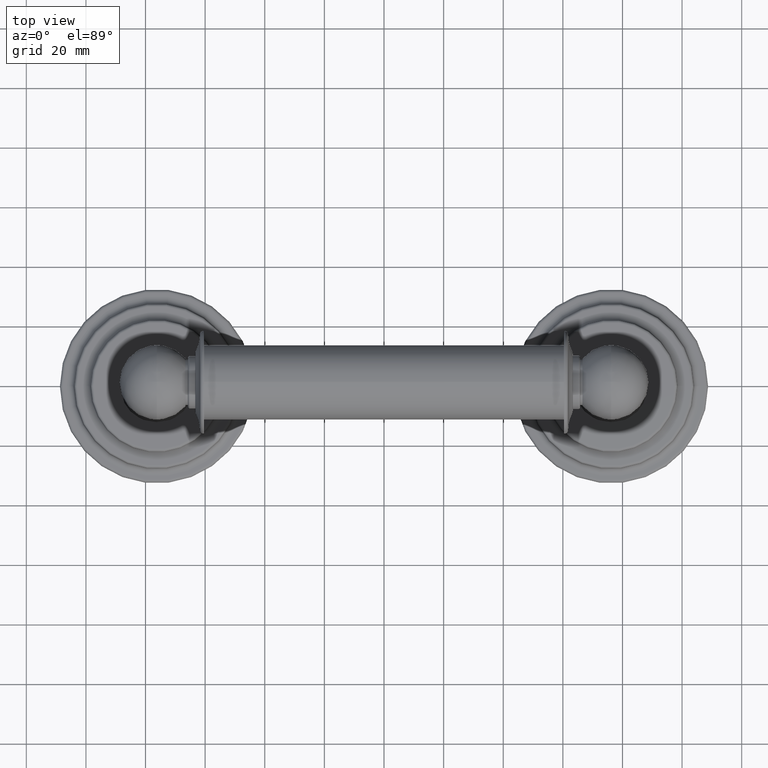
[diagram: clean part render]
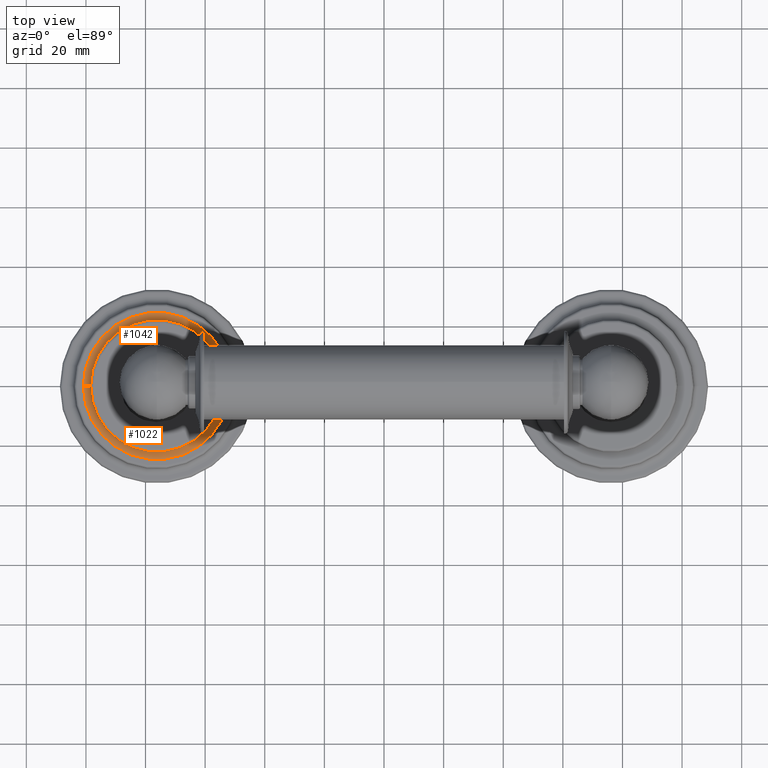
[diagram: same view with one multi-face feature highlighted, each face labeled with its STEP entity id]
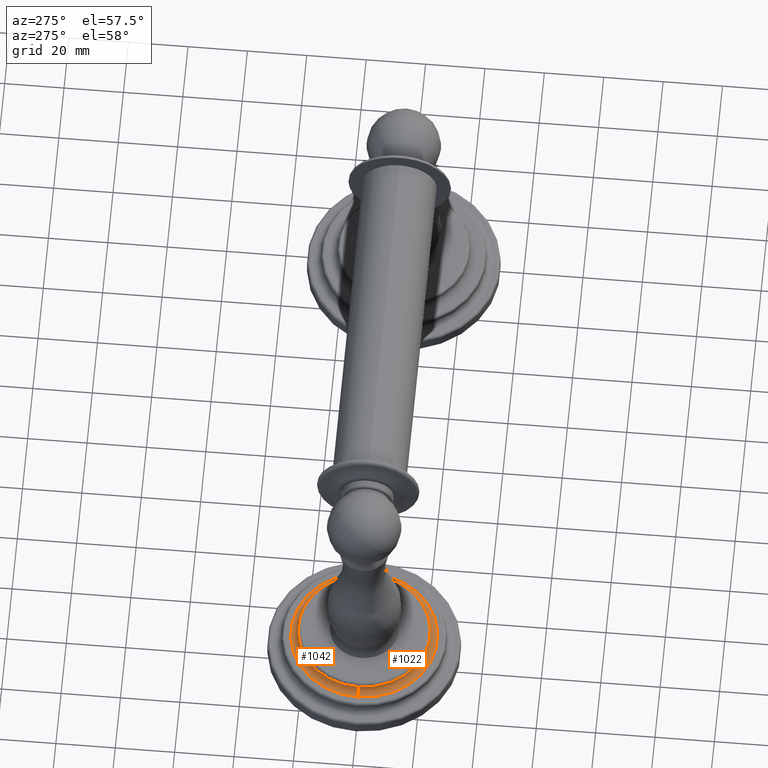
[diagram: same view with one multi-face feature highlighted, each face labeled with its STEP entity id]
A machine part, top view. The highlighted faces form ONE feature: a constant-radius fillet chain: 2 tangent blend faces with common blend radius 2.4892 mm. The faces share edges in the B-rep.
A second angle (auxiliary view) of the same feature is appended — it is thin or edge-on in the first view.
Their STEP definitions:
[1] entity #1042 (Torus):
#345=CARTESIAN_POINT('',(-2.028E0,0.E0,4.6E-1));
#346=DIRECTION('',(0.E0,1.E0,0.E0));
#347=DIRECTION('',(0.E0,0.E0,-1.E0));
#348=AXIS2_PLACEMENT_3D('',#345,#346,#347);
#361=CARTESIAN_POINT('',(-3.972E0,0.E0,4.6E-1));
#362=DIRECTION('',(0.E0,-1.E0,0.E0));
#363=DIRECTION('',(0.E0,0.E0,-1.E0));
#364=AXIS2_PLACEMENT_3D('',#361,#362,#363);
#369=CARTESIAN_POINT('',(-3.E0,0.E0,3.62E-1));
#370=DIRECTION('',(0.E0,0.E0,1.E0));
#371=DIRECTION('',(1.E0,0.E0,0.E0));
#372=AXIS2_PLACEMENT_3D('',#369,#370,#371);
#385=CARTESIAN_POINT('',(-3.E0,0.E0,4.6E-1));
#386=DIRECTION('',(0.E0,0.E0,1.E0));
#387=DIRECTION('',(1.E0,0.E0,0.E0));
#388=AXIS2_PLACEMENT_3D('',#385,#386,#387);
#663=CARTESIAN_POINT('',(-2.028E0,0.E0,3.62E-1));
#664=CARTESIAN_POINT('',(-2.126E0,0.E0,4.6E-1));
#665=VERTEX_POINT('',#663);
#666=VERTEX_POINT('',#664);
#671=CARTESIAN_POINT('',(-3.972E0,0.E0,3.62E-1));
#672=CARTESIAN_POINT('',(-3.874E0,0.E0,4.6E-1));
#673=VERTEX_POINT('',#671);
#674=VERTEX_POINT('',#672);
#1030=CARTESIAN_POINT('',(-3.E0,0.E0,4.6E-1));
#1031=DIRECTION('',(0.E0,0.E0,1.E0));
#1032=DIRECTION('',(1.E0,0.E0,0.E0));
#1033=AXIS2_PLACEMENT_3D('',#1030,#1031,#1032);
#1034=TOROIDAL_SURFACE('',#1033,9.72E-1,9.8E-2);
#1035=ORIENTED_EDGE('',*,*,#1013,.T.);
#1037=ORIENTED_EDGE('',*,*,#1036,.T.);
#1038=ORIENTED_EDGE('',*,*,#1016,.F.);
#1039=ORIENTED_EDGE('',*,*,#768,.F.);
#1040=EDGE_LOOP('',(#1035,#1037,#1038,#1039));
#1041=FACE_OUTER_BOUND('',#1040,.F.);
#349=CIRCLE('',#348,9.8E-2);
#365=CIRCLE('',#364,9.8E-2);
#373=CIRCLE('',#372,9.72E-1);
#389=CIRCLE('',#388,8.74E-1);
#768=EDGE_CURVE('',#665,#673,#373,.T.);
#1013=EDGE_CURVE('',#665,#666,#349,.T.);
#1016=EDGE_CURVE('',#673,#674,#365,.T.);
#1036=EDGE_CURVE('',#666,#674,#389,.T.);
#1042=ADVANCED_FACE('',(#1041),#1034,.F.);
[2] entity #1022 (Torus):
#345=CARTESIAN_POINT('',(-2.028E0,0.E0,4.6E-1));
#346=DIRECTION('',(0.E0,1.E0,0.E0));
#347=DIRECTION('',(0.E0,0.E0,-1.E0));
#348=AXIS2_PLACEMENT_3D('',#345,#346,#347);
#353=CARTESIAN_POINT('',(-3.E0,0.E0,3.62E-1));
#354=DIRECTION('',(0.E0,0.E0,-1.E0));
#355=DIRECTION('',(1.E0,0.E0,0.E0));
#356=AXIS2_PLACEMENT_3D('',#353,#354,#355);
#361=CARTESIAN_POINT('',(-3.972E0,0.E0,4.6E-1));
#362=DIRECTION('',(0.E0,-1.E0,0.E0));
#363=DIRECTION('',(0.E0,0.E0,-1.E0));
#364=AXIS2_PLACEMENT_3D('',#361,#362,#363);
#456=CARTESIAN_POINT('',(-3.E0,0.E0,4.6E-1));
#457=DIRECTION('',(0.E0,0.E0,-1.E0));
#458=DIRECTION('',(1.E0,0.E0,0.E0));
#459=AXIS2_PLACEMENT_3D('',#456,#457,#458);
#663=CARTESIAN_POINT('',(-2.028E0,0.E0,3.62E-1));
#664=CARTESIAN_POINT('',(-2.126E0,0.E0,4.6E-1));
#665=VERTEX_POINT('',#663);
#666=VERTEX_POINT('',#664);
#671=CARTESIAN_POINT('',(-3.972E0,0.E0,3.62E-1));
#672=CARTESIAN_POINT('',(-3.874E0,0.E0,4.6E-1));
#673=VERTEX_POINT('',#671);
#674=VERTEX_POINT('',#672);
#1008=CARTESIAN_POINT('',(-3.E0,0.E0,4.6E-1));
#1009=DIRECTION('',(0.E0,0.E0,1.E0));
#1010=DIRECTION('',(1.E0,0.E0,0.E0));
#1011=AXIS2_PLACEMENT_3D('',#1008,#1009,#1010);
#1012=TOROIDAL_SURFACE('',#1011,9.72E-1,9.8E-2);
#1014=ORIENTED_EDGE('',*,*,#1013,.F.);
#1015=ORIENTED_EDGE('',*,*,#766,.T.);
#1017=ORIENTED_EDGE('',*,*,#1016,.T.);
#1019=ORIENTED_EDGE('',*,*,#1018,.F.);
#1020=EDGE_LOOP('',(#1014,#1015,#1017,#1019));
#1021=FACE_OUTER_BOUND('',#1020,.F.);
#349=CIRCLE('',#348,9.8E-2);
#357=CIRCLE('',#356,9.72E-1);
#365=CIRCLE('',#364,9.8E-2);
#460=CIRCLE('',#459,8.74E-1);
#766=EDGE_CURVE('',#665,#673,#357,.T.);
#1013=EDGE_CURVE('',#665,#666,#349,.T.);
#1016=EDGE_CURVE('',#673,#674,#365,.T.);
#1018=EDGE_CURVE('',#666,#674,#460,.T.);
#1022=ADVANCED_FACE('',(#1021),#1012,.F.);